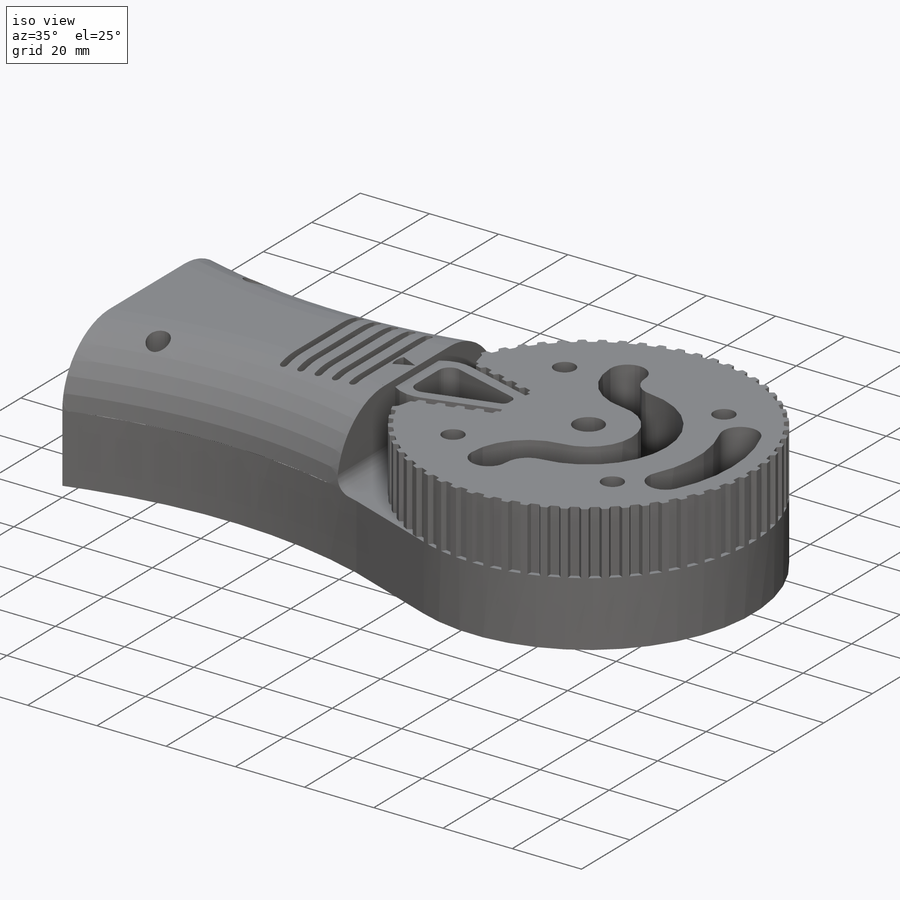
[diagram: iso view]
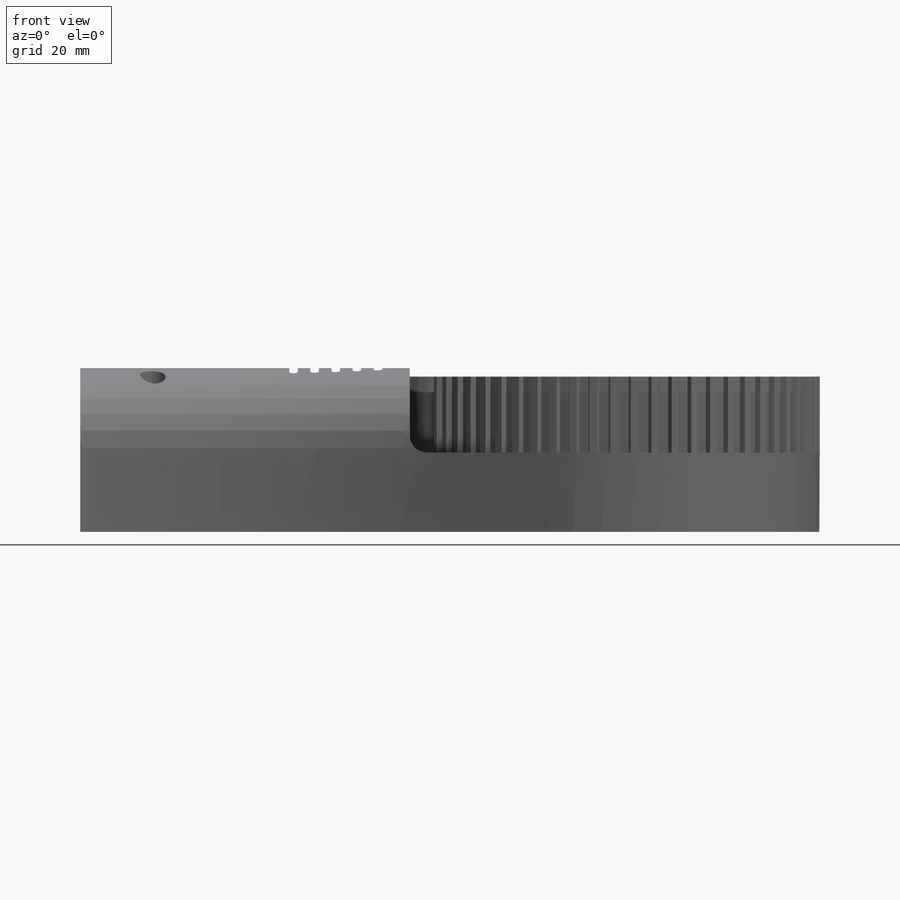
[diagram: front view]
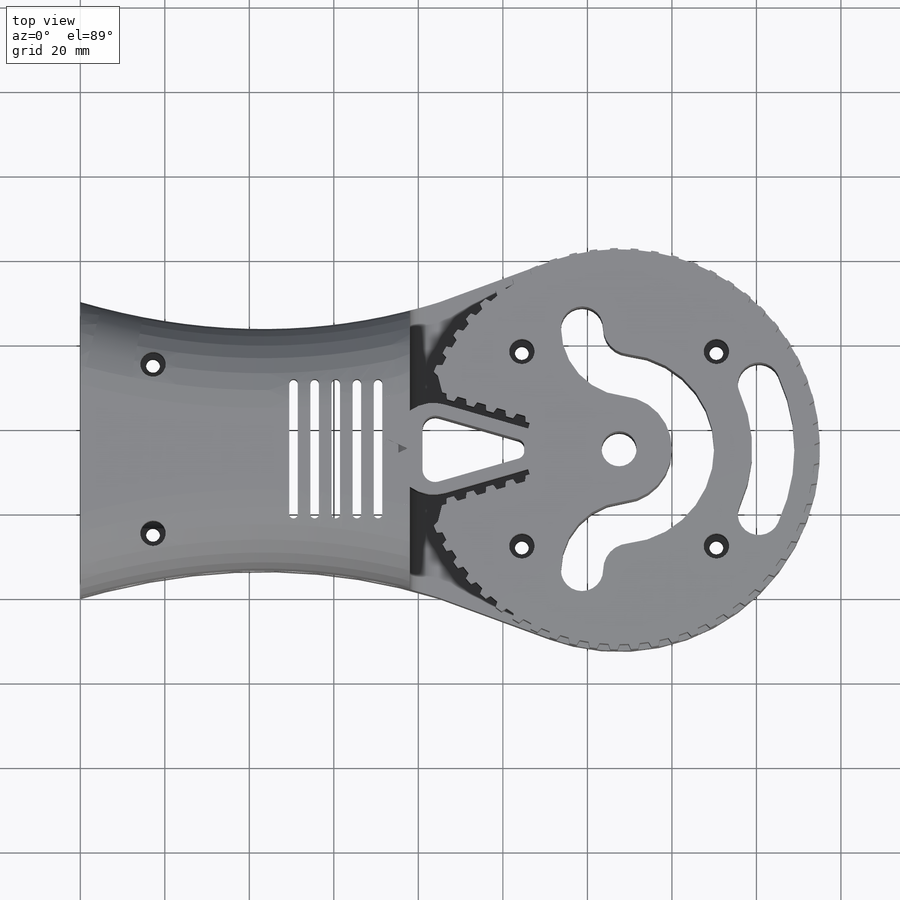
[diagram: top view]
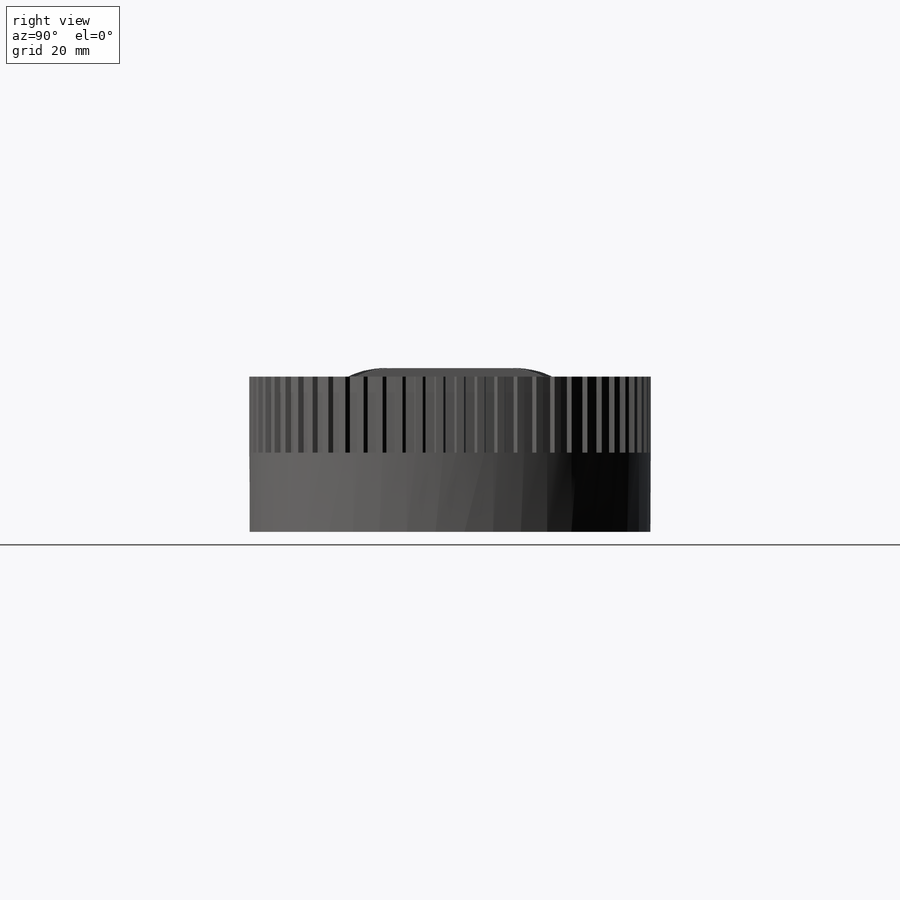
[diagram: right view]
SOLIDWORKS PART (.sldprt)
format: sldprt  version: not decoded by parser v0  size: 2,050,560 bytes
history: native  units: mm
features: sketch x28, cut_extrude x21, extrude x6, fillet x6, plane x4, material x1, pattern_circular x1, chamfer x1 (+9 scaffold rows collapsed)
feature tree (77):
  scaffold x9  (default folders/planes/origin — collapsed)
  material  "Material <sin especificar>"
  plane  "Alzado"
  plane  "Planta"
  plane  "Vista lateral"
  sketch  "Croquis1"  dims[c1.D3=94.0mm c1.D2=8.3mm c1.D1=85.0mm c2.D2=~41.368044mm c2.D1=170.0mm c3.D2=70.0mm c3.D3=70.0mm c3.D1=70.0mm c4.D2=85.0mm c4.D1=~27.089761mm c5.D2=7.0mm c5.D4=20.0mm c5.D5=20.0mm c6.D2=15.0mm c6.D3=~26.134282mm c6.D4=~26.134282mm c7.D3=~26.134282mm c7.D4=9.0mm c7.D5=9.0mm c7.D1=2.0mm c8.D4=2.0mm]
  extrude  "Saliente-Extruir7"  Depth=38.75mm
  extrude  "Saliente-Extruir8"  [1 undecoded]
  sketch  "Croquis1<15>"  dims[D1=36.75mm]
  extrude  "Saliente-Extruir9"  [1 undecoded]
  sketch  "Croquis1<16>"  dims[D1=18.75mm]
  sketch  "Croquis8"  dims[c1.D1=95.1mm c1.D2=~31.160873mm c1.D6=95.0mm c1.D7=~66.295959mm c1.D8=3.3mm c1.D9=6.0mm c2.D2=1.3mm c2.D3=1.9mm c2.D4=0.5mm c2.D5=0.5mm c2.D7=1.3mm c2.D6=1.9mm c3.D7=15.0mm c3.D10=1.05mm c3.D11=1.05mm c3.D12=0.5mm c3.D13=0.5mm c4.D10=1.05mm c4.D11=1.05mm c4.D12=0.5mm c4.D13=0.5mm]
  cut_extrude  "Cortar-Extruir2"  [1 undecoded]
  sketch  "Croquis8<5>"  dims[D1=18.0mm]
  extrude  "Saliente-Extruir11"  Depth=18mm
  cut_extrude  "Cortar-Extruir3"  [1 undecoded]
  sketch  "Croquis8<8>"  dims[D1=50.0mm]
  cut_extrude  "Cortar-Extruir6"  [1 undecoded]
  sketch  "Croquis8<13>"  dims[D1=21.75mm]
  cut_extrude  "Cortar-Extruir7"  [1 undecoded]
  sketch  "Croquis8<14>"  dims[D1=18.0mm]
  pattern_circular  "MatrizC3"  Count=61 Angle=360deg
  sketch  "Croquis10"  dims[c1.D1=0.7mm c1.D2=0.5mm c1.D3=2.1mm c1.D4=0.5mm c1.D5=1.3mm c1.D6=0.5mm c1.D7=1.75mm c1.D8=0.5mm c1.D9=2.1mm c1.D10=0.5mm c1.D11=1.75mm c1.D12=0.5mm c1.D13=2.1mm c1.D14=0.5mm c1.D15=1.75mm c1.D16=0.5mm c1.D17=2.1mm c1.D18=0.5mm c1.D19=1.75mm c1.D20=0.5mm c1.D21=2.1mm c1.D22=0.5mm c1.D23=1.35mm c1.D24=~1.756802mm c1.D25=1.35mm c2.D24=1.3mm c2.D25=1.35mm c3.D24=1.3mm c3.D26=0.7mm c3.D27=0.5mm c3.D28=2.1mm c3.D29=0.5mm c3.D30=1.75mm c3.D31=0.5mm c3.D32=2.1mm c3.D33=0.5mm c3.D34=1.75mm c3.D35=0.5mm c3.D36=2.1mm c3.D37=0.5mm c3.D38=1.75mm c3.D39=0.5mm c3.D40=2.1mm c3.D41=0.5mm c3.D42=1.75mm c3.D43=0.5mm c3.D44=2.1mm c3.D45=0.5mm c3.D46=50.0mm c3.D23=1.0mm c4.D46=1.0mm c4.D47=~1.350348mm c4.D48=~1.350055mm c4.D25=0.0mm]
  cut_extrude  "Cortar-Extruir19"  Depth=18mm
  sketch  "Croquis11"
  extrude  "Saliente-Extruir12"  Depth=18mm
  sketch  "Croquis13"  dims[D2=3.3mm D3=6.0mm D1=15.0mm]
  fillet  "Redondeo9"  Radius=19mm
  cut_extrude  "Cortar-Extruir20"  Depth=40mm
  cut_extrude  "Cortar-Extruir21"  [1 undecoded]
  sketch  "Croquis13<6>"  dims[D1=23.75mm]
  sketch  "Croquis14"  dims[D1=78.4mm D2=35.5mm D3=26.0mm D4=44.3mm]
  sketch  "Croquis16"  dims[D1=22.0mm]
  cut_extrude  "Cortar-Extruir23"  Depth=7mm
  sketch  "Croquis18"  dims[D1=8.3mm]
  cut_extrude  "Cortar-Extruir25"  Depth=10mm
  cut_extrude  "Cortar-Extruir27"  Depth=22.15mm
  sketch  "Croquis19"  dims[D1=24.0mm]
  cut_extrude  "Cortar-Extruir28"  Depth=30.9mm
  sketch  "Croquis20"  dims[D4=3.3mm D5=3.3mm D1=31.0mm D2=6.65mm D3=15.5mm]
  cut_extrude  "Cortar-Extruir29"  Depth=45mm
  sketch  "Croquis21"  dims[D1=4.555mm D2=5.65mm D3=33.0mm D4=26.0mm D5=5.0mm D6=5.0mm D7=5.0mm D8=5.0mm D9=5.0mm D10=1.0mm D11=1.0mm]
  cut_extrude  "Cortar-Extruir30"  Depth=45mm
  sketch  "Croquis22"  dims[D1=6.0mm]
  cut_extrude  "Cortar-Extruir31"  Depth=37.9mm
  sketch  "Croquis23"  dims[D1=22.15mm D2=44.3mm]
  extrude  "Saliente-Extruir13"  Depth=1mm
  sketch  "Croquis24"
  cut_extrude  "Cortar-Extruir32"  Depth=3.4mm
  sketch  "Croquis26"
  cut_extrude  "Cortar-Extruir34"  Depth=18mm
  fillet  "Redondeo13"  Radius=4mm
  fillet  "Redondeo14"  Radius=10mm
  sketch  "Croquis27"  dims[c1.D1=70.0mm c1.D2=8.0mm c1.D3=35.0mm c2.D2=10.0mm c2.D5=51.0mm c2.D8=3.0mm c2.D9=2.0mm c2.D4=5.0mm c3.D2=17.5mm c3.D3=10.0mm c3.D4=45.0mm c3.D10=25.0mm c3.D11=~87.093282mm c3.D12=~60.847321mm c4.D4=80.0mm c5.D4=170.0deg c5.D2=35.0mm c6.D2=17.0deg c6.D11=6.0mm c6.D12=10.0mm c6.D13=35.0mm c7.D13=25.0deg c7.D5=3.0mm c7.D6=3.0mm c7.D7=3.0mm]
  cut_extrude  "Cortar-Extruir37"  Depth=60mm
  sketch  "Croquis28"  dims[c1.D1=0.5mm c1.D2=7.0mm c1.D3=~6.512659mm c2.D3=25.0deg c2.D2=0.5mm c2.D4=~5.512659mm c2.D5=~5.512659mm]
  cut_extrude  "Cortar-Extruir39"  Depth=2mm
  sketch  "Croquis29"  dims[c1.D1=0.5mm c1.D2=15.0mm c1.D3=15.0mm c2.D3=15.0deg]
  plane  "Plano3"
  sketch  "Croquis36"  dims[D1=6.0mm D2=6.0mm D3=~30.59956mm D4=~28.755841mm]
  cut_extrude  "Cortar-Extruir43"  Depth=4mm
  sketch  "Croquis37"  dims[D1=2.0mm D2=4.0mm D3=3.0mm D4=4.0mm D5=2.0mm D6=3.0mm]
  fillet  "Redondeo22"  Radius=20mm
  fillet  "Redondeo23"  Radius=20mm
  cut_extrude  "Cortar-Extruir44"  Depth=5mm
  sketch  "Croquis38"  dims[D1=2.0mm D2=2.0mm]
  cut_extrude  "Cortar-Extruir45"  Depth=25mm
  fillet  "Redondeo24"  Radius=3mm
  chamfer  "Chaflán2"  Distance=0.2mm Angle=45deg
decode coverage: 53 of 63 modeling features carry decoded parameters
note: ~ marks probable driven/reference dimensions
note: 7 parameter values undecoded
summary: no parameter record found for 7 features
note: suppression state not decoded; provenance and decode notes live in map.json
